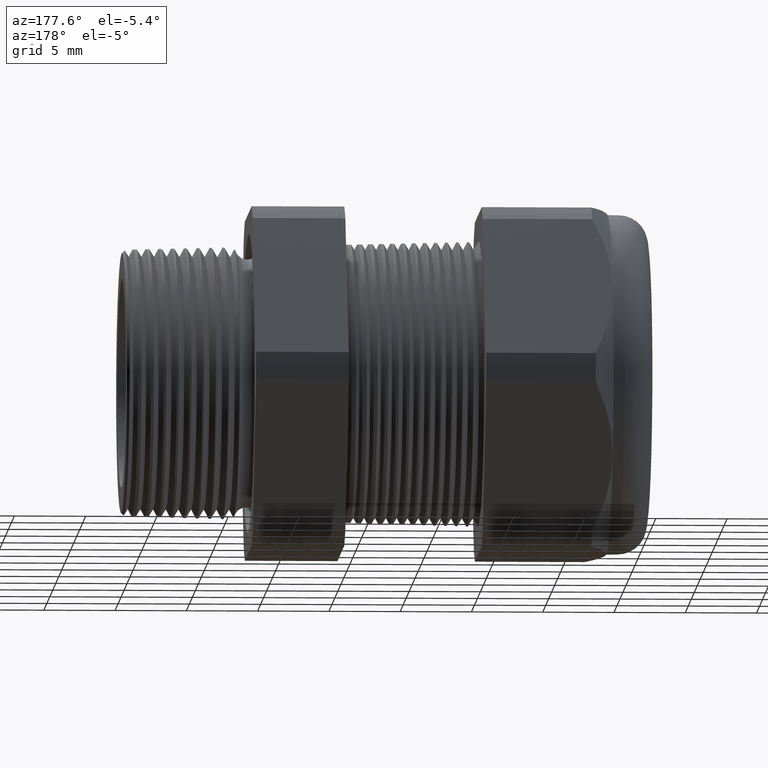
[diagram: clean part render]
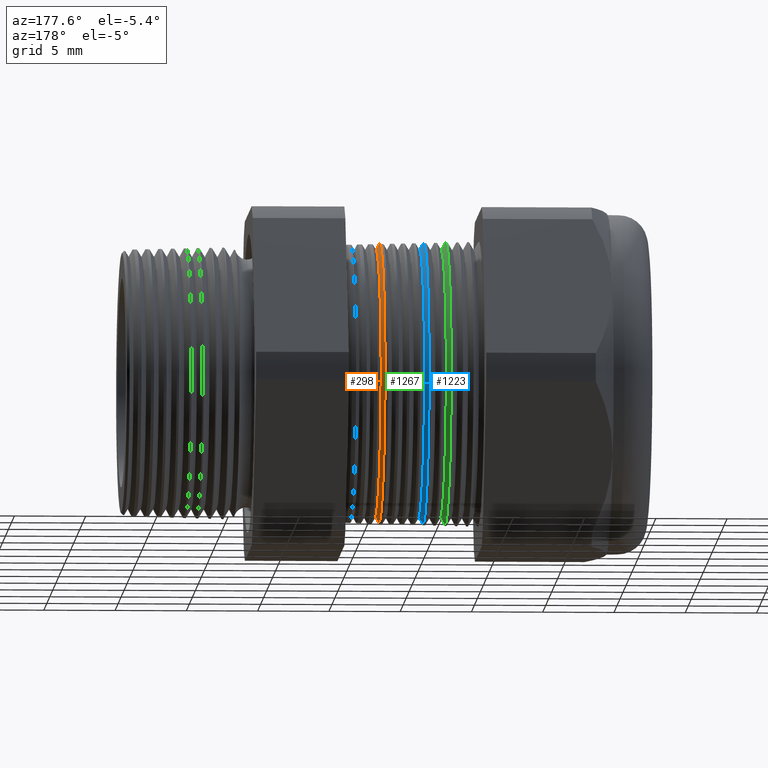
[diagram: same view with three faces highlighted in distinct colors, each labeled with its STEP entity id]
A machine part, auxiliary view with three faces highlighted in distinct colors.
Their STEP definitions:

[orange] entity #298 — the highlighted conical surface has half-angle 61.5 deg.
#298 = ADVANCED_FACE ( 'NONE', ( #2330 ), #2329, .T. ) ;
#299 = EDGE_LOOP ( 'NONE', ( #300, #343, #346, #349 ) ) ;
#300 = ORIENTED_EDGE ( 'NONE', *, *, #328, .F. ) ;
#328 = EDGE_CURVE ( 'NONE', #329, #330, #2394, .T. ) ;
#329 = VERTEX_POINT ( 'NONE', #2390 ) ;
#330 = VERTEX_POINT ( 'NONE', #2389 ) ;
#343 = ORIENTED_EDGE ( 'NONE', *, *, #344, .T. ) ;
#344 = EDGE_CURVE ( 'NONE', #329, #345, #2421, .T. ) ;
#345 = VERTEX_POINT ( 'NONE', #2481 ) ;
#346 = ORIENTED_EDGE ( 'NONE', *, *, #347, .T. ) ;
#347 = EDGE_CURVE ( 'NONE', #345, #348, #2480, .T. ) ;
#348 = VERTEX_POINT ( 'NONE', #2475 ) ;
#349 = ORIENTED_EDGE ( 'NONE', *, *, #350, .F. ) ;
#350 = EDGE_CURVE ( 'NONE', #330, #348, #2474, .T. ) ;
#1913 = CARTESIAN_POINT ( 'NONE',  ( -0.6754330708661417900, 4.837354856632045600E-017, -0.3950000000000000200 ) ) ;
#2170 = DIRECTION ( 'NONE',  ( -0.4771587602596201200, 1.076240564057387000E-016, -0.8788171126619589400 ) ) ;
#2171 = VECTOR ( 'NONE', #2170, 39.37007874015748100 ) ;
#2325 = DIRECTION ( 'NONE',  ( 0.0000000000000000000, 0.0000000000000000000, 1.000000000000000000 ) ) ;
#2326 = DIRECTION ( 'NONE',  ( -1.000000000000000000, 0.0000000000000000000, 0.0000000000000000000 ) ) ;
#2327 = CARTESIAN_POINT ( 'NONE',  ( -0.6754330708661417900, 0.0000000000000000000, 0.0000000000000000000 ) ) ;
#2328 = AXIS2_PLACEMENT_3D ( 'NONE', #2327, #2326, #2325 ) ;
#2329 = CONICAL_SURFACE ( 'NONE', #2328, 0.3950000000000000200, 1.073377489976499400 ) ;
#2330 = FACE_OUTER_BOUND ( 'NONE', #299, .T. ) ;
#2389 = CARTESIAN_POINT ( 'NONE',  ( -0.6616586839320377500, 0.0000000000000000000, 0.3696307351718083900 ) ) ;
#2390 = CARTESIAN_POINT ( 'NONE',  ( -0.6616586839320377500, 4.638096028739116200E-017, -0.3696307351718083900 ) ) ;
#2391 = DIRECTION ( 'NONE',  ( 0.0000000000000000000, 0.0000000000000000000, -1.000000000000000000 ) ) ;
#2392 = DIRECTION ( 'NONE',  ( 1.000000000000000000, 0.0000000000000000000, 0.0000000000000000000 ) ) ;
#2393 = AXIS2_PLACEMENT_3D ( 'NONE', #2399, #2392, #2391 ) ;
#2394 = CIRCLE ( 'NONE', #2393, 0.3696307351718083900 ) ;
#2399 = CARTESIAN_POINT ( 'NONE',  ( -0.6616586839320377500, 0.0000000000000000000, 0.0000000000000000000 ) ) ;
#2421 = LINE ( 'NONE', #1913, #2171 ) ;
#2471 = DIRECTION ( 'NONE',  ( -0.4771587602596201200, 0.0000000000000000000, 0.8788171126619589400 ) ) ;
#2472 = VECTOR ( 'NONE', #2471, 39.37007874015748100 ) ;
#2473 = CARTESIAN_POINT ( 'NONE',  ( -0.6754330708661417900, 0.0000000000000000000, 0.3950000000000000200 ) ) ;
#2474 = LINE ( 'NONE', #2473, #2472 ) ;
#2475 = CARTESIAN_POINT ( 'NONE',  ( -0.6715388995868787300, 0.0000000000000000000, 0.3878278287126258300 ) ) ;
#2476 = DIRECTION ( 'NONE',  ( 0.0000000000000000000, 0.0000000000000000000, 1.000000000000000000 ) ) ;
#2477 = DIRECTION ( 'NONE',  ( 1.000000000000000000, 0.0000000000000000000, 0.0000000000000000000 ) ) ;
#2478 = CARTESIAN_POINT ( 'NONE',  ( -0.6715388995868787300, 0.0000000000000000000, 0.0000000000000000000 ) ) ;
#2479 = AXIS2_PLACEMENT_3D ( 'NONE', #2478, #2477, #2476 ) ;
#2480 = CIRCLE ( 'NONE', #2479, 0.3878278287126258300 ) ;
#2481 = CARTESIAN_POINT ( 'NONE',  ( -0.6715388995868787300, 4.750936425541164300E-017, -0.3878278287126258300 ) ) ;

[blue] entity #1223 — the highlighted conical surface has half-angle 61.5 deg.
#1166 = VERTEX_POINT ( 'NONE', #3840 ) ;
#1167 = EDGE_CURVE ( 'NONE', #1166, #1168, #3839, .T. ) ;
#1168 = VERTEX_POINT ( 'NONE', #3834 ) ;
#1223 = ADVANCED_FACE ( 'NONE', ( #3875 ), #3874, .T. ) ;
#1224 = EDGE_LOOP ( 'NONE', ( #1225, #1226, #1229, #1232 ) ) ;
#1225 = ORIENTED_EDGE ( 'NONE', *, *, #1167, .F. ) ;
#1226 = ORIENTED_EDGE ( 'NONE', *, *, #1227, .T. ) ;
#1227 = EDGE_CURVE ( 'NONE', #1166, #1228, #3931, .T. ) ;
#1228 = VERTEX_POINT ( 'NONE', #3927 ) ;
#1229 = ORIENTED_EDGE ( 'NONE', *, *, #1230, .T. ) ;
#1230 = EDGE_CURVE ( 'NONE', #1228, #1231, #3926, .T. ) ;
#1231 = VERTEX_POINT ( 'NONE', #3921 ) ;
#1232 = ORIENTED_EDGE ( 'NONE', *, *, #1233, .F. ) ;
#1233 = EDGE_CURVE ( 'NONE', #1168, #1231, #3920, .T. ) ;
#3834 = CARTESIAN_POINT ( 'NONE',  ( -0.7816586839320377500, 0.0000000000000000000, 0.3696307351718083900 ) ) ;
#3835 = DIRECTION ( 'NONE',  ( 0.0000000000000000000, 0.0000000000000000000, -1.000000000000000000 ) ) ;
#3836 = DIRECTION ( 'NONE',  ( 1.000000000000000000, 0.0000000000000000000, 0.0000000000000000000 ) ) ;
#3837 = CARTESIAN_POINT ( 'NONE',  ( -0.7816586839320377500, 0.0000000000000000000, 0.0000000000000000000 ) ) ;
#3838 = AXIS2_PLACEMENT_3D ( 'NONE', #3837, #3836, #3835 ) ;
#3839 = CIRCLE ( 'NONE', #3838, 0.3696307351718083900 ) ;
#3840 = CARTESIAN_POINT ( 'NONE',  ( -0.7816586839320377500, 4.657614643428048400E-017, -0.3696307351718083900 ) ) ;
#3872 = CARTESIAN_POINT ( 'NONE',  ( -0.7954330708661417900, 0.0000000000000000000, 0.0000000000000000000 ) ) ;
#3873 = AXIS2_PLACEMENT_3D ( 'NONE', #3872, #3933, #3932 ) ;
#3874 = CONICAL_SURFACE ( 'NONE', #3873, 0.3950000000000000200, 1.073377489976499400 ) ;
#3875 = FACE_OUTER_BOUND ( 'NONE', #1224, .T. ) ;
#3917 = DIRECTION ( 'NONE',  ( -0.4771587602596201200, 0.0000000000000000000, 0.8788171126619589400 ) ) ;
#3918 = VECTOR ( 'NONE', #3917, 39.37007874015748100 ) ;
#3919 = CARTESIAN_POINT ( 'NONE',  ( -0.7954330708661417900, 0.0000000000000000000, 0.3950000000000000200 ) ) ;
#3920 = LINE ( 'NONE', #3919, #3918 ) ;
#3921 = CARTESIAN_POINT ( 'NONE',  ( -0.7932696423776622900, 0.0000000000000000000, 0.3910154603959032400 ) ) ;
#3922 = DIRECTION ( 'NONE',  ( 0.0000000000000000000, 0.0000000000000000000, 1.000000000000000000 ) ) ;
#3923 = DIRECTION ( 'NONE',  ( 1.000000000000000000, 0.0000000000000000000, 0.0000000000000000000 ) ) ;
#3924 = CARTESIAN_POINT ( 'NONE',  ( -0.7932696423776622900, 0.0000000000000000000, 0.0000000000000000000 ) ) ;
#3925 = AXIS2_PLACEMENT_3D ( 'NONE', #3924, #3923, #3922 ) ;
#3926 = CIRCLE ( 'NONE', #3925, 0.3910154603959032400 ) ;
#3927 = CARTESIAN_POINT ( 'NONE',  ( -0.7932696423776622900, 4.789392262317096300E-017, -0.3910154603959032400 ) ) ;
#3928 = DIRECTION ( 'NONE',  ( -0.4771587602596201200, 1.076240564057387000E-016, -0.8788171126619589400 ) ) ;
#3929 = VECTOR ( 'NONE', #3928, 39.37007874015748100 ) ;
#3930 = CARTESIAN_POINT ( 'NONE',  ( -0.7954330708661417900, 4.837354856632045600E-017, -0.3950000000000000200 ) ) ;
#3931 = LINE ( 'NONE', #3930, #3929 ) ;
#3932 = DIRECTION ( 'NONE',  ( 0.0000000000000000000, 0.0000000000000000000, 1.000000000000000000 ) ) ;
#3933 = DIRECTION ( 'NONE',  ( -1.000000000000000000, 0.0000000000000000000, 0.0000000000000000000 ) ) ;

[green] entity #1267 — the highlighted conical surface has half-angle 61.5 deg.
#1193 = VERTEX_POINT ( 'NONE', #3868 ) ;
#1203 = EDGE_CURVE ( 'NONE', #1204, #1205, #3850, .T. ) ;
#1204 = VERTEX_POINT ( 'NONE', #3846 ) ;
#1205 = VERTEX_POINT ( 'NONE', #3845 ) ;
#1248 = ORIENTED_EDGE ( 'NONE', *, *, #1249, .F. ) ;
#1249 = EDGE_CURVE ( 'NONE', #1205, #1193, #3952, .T. ) ;
#1267 = ADVANCED_FACE ( 'NONE', ( #3977 ), #3975, .T. ) ;
#1268 = EDGE_LOOP ( 'NONE', ( #1269, #1270, #1273, #1248 ) ) ;
#1269 = ORIENTED_EDGE ( 'NONE', *, *, #1203, .F. ) ;
#1270 = ORIENTED_EDGE ( 'NONE', *, *, #1271, .T. ) ;
#1271 = EDGE_CURVE ( 'NONE', #1204, #1272, #3976, .T. ) ;
#1272 = VERTEX_POINT ( 'NONE', #3967 ) ;
#1273 = ORIENTED_EDGE ( 'NONE', *, *, #1274, .T. ) ;
#1274 = EDGE_CURVE ( 'NONE', #1272, #1193, #4027, .T. ) ;
#3845 = CARTESIAN_POINT ( 'NONE',  ( -0.8416586839320378000, 0.0000000000000000000, 0.3696307351718083900 ) ) ;
#3846 = CARTESIAN_POINT ( 'NONE',  ( -0.8416586839320378000, 4.667373950772513900E-017, -0.3696307351718083900 ) ) ;
#3847 = DIRECTION ( 'NONE',  ( 0.0000000000000000000, 0.0000000000000000000, -1.000000000000000000 ) ) ;
#3848 = DIRECTION ( 'NONE',  ( 1.000000000000000000, 0.0000000000000000000, 0.0000000000000000000 ) ) ;
#3849 = AXIS2_PLACEMENT_3D ( 'NONE', #3856, #3848, #3847 ) ;
#3850 = CIRCLE ( 'NONE', #3849, 0.3696307351718083900 ) ;
#3856 = CARTESIAN_POINT ( 'NONE',  ( -0.8416586839320378000, 0.0000000000000000000, 0.0000000000000000000 ) ) ;
#3868 = CARTESIAN_POINT ( 'NONE',  ( -0.8541350137730541200, 0.0000000000000000000, 0.3926092762375419400 ) ) ;
#3949 = DIRECTION ( 'NONE',  ( -0.4771587602596201200, 0.0000000000000000000, 0.8788171126619589400 ) ) ;
#3950 = VECTOR ( 'NONE', #3949, 39.37007874015748100 ) ;
#3951 = CARTESIAN_POINT ( 'NONE',  ( -0.8554330708661418400, 0.0000000000000000000, 0.3950000000000000200 ) ) ;
#3952 = LINE ( 'NONE', #3951, #3950 ) ;
#3967 = CARTESIAN_POINT ( 'NONE',  ( -0.8541350137730541200, 4.808620180705062400E-017, -0.3926092762375419400 ) ) ;
#3968 = DIRECTION ( 'NONE',  ( -0.4771587602596201200, 1.076240564057387000E-016, -0.8788171126619589400 ) ) ;
#3969 = VECTOR ( 'NONE', #3968, 39.37007874015748100 ) ;
#3970 = CARTESIAN_POINT ( 'NONE',  ( -0.8554330708661418400, 4.837354856632045600E-017, -0.3950000000000000200 ) ) ;
#3971 = DIRECTION ( 'NONE',  ( 0.0000000000000000000, 0.0000000000000000000, 1.000000000000000000 ) ) ;
#3972 = DIRECTION ( 'NONE',  ( -1.000000000000000000, 0.0000000000000000000, 0.0000000000000000000 ) ) ;
#3973 = CARTESIAN_POINT ( 'NONE',  ( -0.8554330708661418400, 0.0000000000000000000, 0.0000000000000000000 ) ) ;
#3974 = AXIS2_PLACEMENT_3D ( 'NONE', #3973, #3972, #3971 ) ;
#3975 = CONICAL_SURFACE ( 'NONE', #3974, 0.3950000000000000200, 1.073377489976499400 ) ;
#3976 = LINE ( 'NONE', #3970, #3969 ) ;
#3977 = FACE_OUTER_BOUND ( 'NONE', #1268, .T. ) ;
#4023 = DIRECTION ( 'NONE',  ( 0.0000000000000000000, 0.0000000000000000000, 1.000000000000000000 ) ) ;
#4024 = DIRECTION ( 'NONE',  ( 1.000000000000000000, 0.0000000000000000000, 0.0000000000000000000 ) ) ;
#4025 = CARTESIAN_POINT ( 'NONE',  ( -0.8541350137730541200, 0.0000000000000000000, 0.0000000000000000000 ) ) ;
#4026 = AXIS2_PLACEMENT_3D ( 'NONE', #4025, #4024, #4023 ) ;
#4027 = CIRCLE ( 'NONE', #4026, 0.3926092762375419400 ) ;